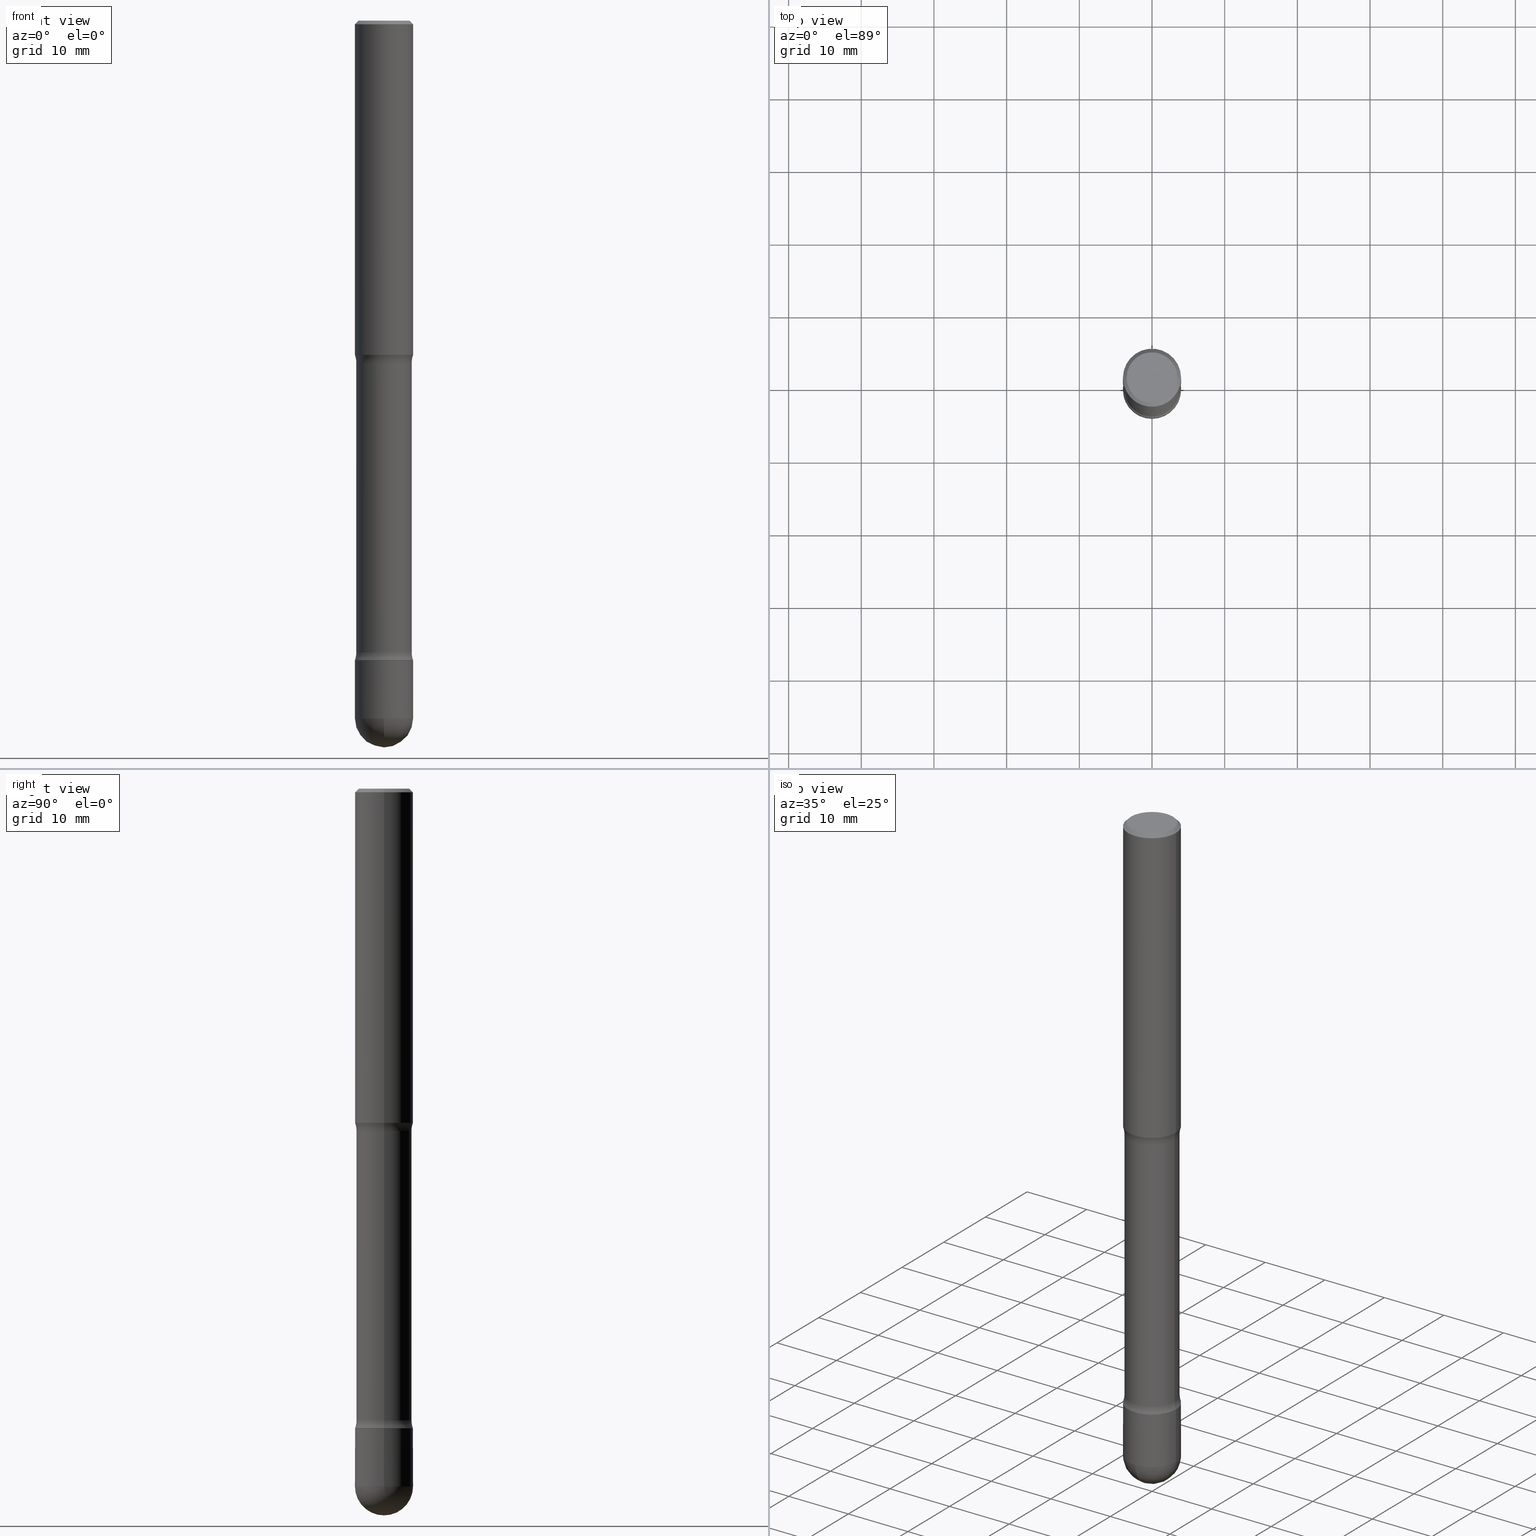
[diagram: canonical four-view strip — front | top / right | iso, engineering-drawing reading convention]
A machine part, canonical four-view strip (front | top / right | iso — engineering-drawing reading convention). The complete STEP part file that produces these views, byte-faithful:
ISO-10303-21;
HEADER;
FILE_DESCRIPTION (( 'STEP AP203' ),
    '1' );
FILE_NAME ('44582.STEP',
    '2024-02-29T19:25:19',
    ( '' ),
    ( '' ),
    'SwSTEP 2.0',
    'SolidWorks 2023',
    '' );
FILE_SCHEMA (( 'CONFIG_CONTROL_DESIGN' ));
ENDSEC;

DATA;
#1 = CYLINDRICAL_SURFACE ( 'NONE', #349, 0.1574999999999998623 ) ;
#2 = CARTESIAN_POINT ( 'NONE',  ( 9.607607386369020124E-29, -1.377489431165532057E-14, -3.937000000000000277 ) ) ;
#3 = FACE_OUTER_BOUND ( 'NONE', #246, .T. ) ;
#4 = AXIS2_PLACEMENT_3D ( 'NONE', #139, #352, #95 ) ;
#5 = AXIS2_PLACEMENT_3D ( 'NONE', #14, #548, #543 ) ;
#6 = ORIENTED_EDGE ( 'NONE', *, *, #463, .T. ) ;
#7 = CYLINDRICAL_SURFACE ( 'NONE', #359, 0.1499999999999998557 ) ;
#8 = CC_DESIGN_PERSON_AND_ORGANIZATION_ASSIGNMENT ( #294, #117, ( #518 ) ) ;
#9 = AXIS2_PLACEMENT_3D ( 'NONE', #450, #317, #486 ) ;
#10 = FACE_OUTER_BOUND ( 'NONE', #222, .T. ) ;
#11 = CARTESIAN_POINT ( 'NONE',  ( 0.000000000000000000, 0.000000000000000000, 0.000000000000000000 ) ) ;
#12 = DIRECTION ( 'NONE',  ( -1.000000000000000000, 6.982962677686264344E-15, 0.000000000000000000 ) ) ;
#13 = AXIS2_PLACEMENT_3D ( 'NONE', #363, #16, #143 ) ;
#14 = CARTESIAN_POINT ( 'NONE',  ( 0.2749999999999869771, -1.383432267117081853E-14, -3.421953194726923275 ) ) ;
#15 = AXIS2_PLACEMENT_3D ( 'NONE', #97, #305, #405 ) ;
#16 = DIRECTION ( 'NONE',  ( 2.445468806185136597E-29, -3.491481338843145583E-15, -1.000000000000000000 ) ) ;
#17 = ADVANCED_FACE ( 'NONE', ( #262 ), #85, .T. ) ;
#18 = DIRECTION ( 'NONE',  ( 2.445468806185136597E-29, -3.491481338843145583E-15, -1.000000000000000000 ) ) ;
#19 = ADVANCED_FACE ( 'NONE', ( #185 ), #313, .T. ) ;
#20 = PERSON_AND_ORGANIZATION ( #40, #114 ) ;
#21 = CARTESIAN_POINT ( 'NONE',  ( 0.1499999999999997446, -1.023890417526618062E-14, -3.421953194726920611 ) ) ;
#22 = VECTOR ( 'NONE', #519, 39.37007874015748143 ) ;
#23 = AXIS2_PLACEMENT_3D ( 'NONE', #302, #87, #79 ) ;
#24 = EDGE_LOOP ( 'NONE', ( #301, #424, #478, #372 ) ) ;
#25 = AXIS2_PLACEMENT_3D ( 'NONE', #541, #101, #59 ) ;
#26 = ORIENTED_EDGE ( 'NONE', *, *, #390, .F. ) ;
#27 = APPLICATION_PROTOCOL_DEFINITION ( 'international standard', 'config_control_design', 1994, #512 ) ;
#28 = ORIENTED_EDGE ( 'NONE', *, *, #144, .F. ) ;
#29 = DIRECTION ( 'NONE',  ( -0.7071067811859887975, 7.493145998868334676E-15, 0.7071067811871062370 ) ) ;
#30 = APPROVAL ( #236, 'UNSPECIFIED' ) ;
#31 = CIRCLE ( 'NONE', #308, 0.1573673271255958406 ) ;
#32 = VERTEX_POINT ( 'NONE', #2 ) ;
#33 = ADVANCED_FACE ( 'NONE', ( #440 ), #214, .T. ) ;
#34 = VERTEX_POINT ( 'NONE', #402 ) ;
#35 = CARTESIAN_POINT ( 'NONE',  ( 0.1569999999999993345, -1.319291138695270268E-14, -3.464599999999999902 ) ) ;
#36 = ORIENTED_EDGE ( 'NONE', *, *, #220, .F. ) ;
#37 = CARTESIAN_POINT ( 'NONE',  ( 9.229180483922148002E-29, -1.321534190724423940E-14, -3.779500000000000082 ) ) ;
#38 = CONICAL_SURFACE ( 'NONE', #380, 0.1569999999999993345, 0.7853981633966581333 ) ;
#39 = APPLICATION_PROTOCOL_DEFINITION ( 'international standard', 'config_control_design', 1994, #540 ) ;
#40 = PERSON ( 'UNSPECIFIED', 'UNSPECIFIED', 'UNSPECIFIED', ('UNSPECIFIED'), ('UNSPECIFIED'), ('UNSPECIFIED') ) ;
#41 = ADVANCED_FACE ( 'NONE', ( #180 ), #341, .T. ) ;
#42 = EDGE_CURVE ( 'NONE', #465, #210, #439, .T. ) ;
#43 = ORIENTED_EDGE ( 'NONE', *, *, #477, .F. ) ;
#44 = DIRECTION ( 'NONE',  ( 2.445468806185136597E-29, -3.491481338843145583E-15, -1.000000000000000000 ) ) ;
#45 = CC_DESIGN_PERSON_AND_ORGANIZATION_ASSIGNMENT ( #232, #413, ( #335 ) ) ;
#46 = EDGE_CURVE ( 'NONE', #504, #34, #418, .T. ) ;
#47 = DIRECTION ( 'NONE',  ( -1.000000000000000000, 6.982962677686264344E-15, 0.000000000000000000 ) ) ;
#48 = DIRECTION ( 'NONE',  ( -2.438088387897960049E-29, 3.491481338843145188E-15, 1.000000000000000000 ) ) ;
#49 = CARTESIAN_POINT ( 'NONE',  ( -0.1574999999999998623, -1.099676962482037704E-14, -3.464599999999999902 ) ) ;
#50 = FACE_OUTER_BOUND ( 'NONE', #140, .T. ) ;
#51 = VERTEX_POINT ( 'NONE', #488 ) ;
#52 = CARTESIAN_POINT ( 'NONE',  ( 0.000000000000000000, 0.000000000000000000, 0.000000000000000000 ) ) ;
#53 = CARTESIAN_POINT ( 'NONE',  ( -0.1569999999999993345, -1.097908788540677166E-14, -3.464599999999999902 ) ) ;
#54 = EDGE_LOOP ( 'NONE', ( #309, #251, #513, #551 ) ) ;
#55 = ORIENTED_EDGE ( 'NONE', *, *, #243, .F. ) ;
#56 = CIRCLE ( 'NONE', #58, 0.1574999999999997513 ) ;
#57 = CARTESIAN_POINT ( 'NONE',  ( 8.471672938881710786E-29, -1.209530373075168983E-14, -3.464232672874402841 ) ) ;
#58 = AXIS2_PLACEMENT_3D ( 'NONE', #280, #419, #429 ) ;
#59 = DIRECTION ( 'NONE',  ( -1.000000000000000000, 6.982962677686265922E-15, -4.876176775795935793E-29 ) ) ;
#60 = APPROVAL_DATE_TIME ( #451, #30 ) ;
#61 = EDGE_CURVE ( 'NONE', #526, #34, #99, .T. ) ;
#62 = CYLINDRICAL_SURFACE ( 'NONE', #146, 0.1574999999999998623 ) ;
#63 = EDGE_CURVE ( 'NONE', #386, #393, #530, .T. ) ;
#64 = PERSON_AND_ORGANIZATION_ROLE ( 'creator' ) ;
#65 = CARTESIAN_POINT ( 'NONE',  ( 9.229180483922148002E-29, -1.321534190724423940E-14, -3.779500000000000082 ) ) ;
#66 = DIRECTION ( 'NONE',  ( 2.445468806185136597E-29, -3.491481338843145583E-15, -1.000000000000000000 ) ) ;
#67 = EDGE_CURVE ( 'NONE', #70, #295, #69, .T. ) ;
#68 = CARTESIAN_POINT ( 'NONE',  ( 4.428744008001288403E-29, -6.323072704644945461E-15, -1.811000000000002608 ) ) ;
#69 = CIRCLE ( 'NONE', #501, 0.1574999999999993072 ) ;
#70 = VERTEX_POINT ( 'NONE', #77 ) ;
#71 = CIRCLE ( 'NONE', #436, 0.1573673271255958406 ) ;
#72 = LOCAL_TIME ( 14, 25, 19.00000000000000000, #381 ) ;
#73 = CONICAL_SURFACE ( 'NONE', #389, 0.1569999999999993345, 0.7853981633966581333 ) ;
#74 = ORIENTED_EDGE ( 'NONE', *, *, #67, .T. ) ;
#75 = ORIENTED_EDGE ( 'NONE', *, *, #542, .F. ) ;
#76 = EDGE_LOOP ( 'NONE', ( #82, #387, #209, #26 ) ) ;
#77 = CARTESIAN_POINT ( 'NONE',  ( -1.099816621735492028E-15, -0.1575000000000128797, -3.779499999999999194 ) ) ;
#78 = EDGE_LOOP ( 'NONE', ( #227, #493 ) ) ;
#79 = DIRECTION ( 'NONE',  ( -1.000000000000000000, 6.982962677686266711E-15, 0.000000000000000000 ) ) ;
#80 = AXIS2_PLACEMENT_3D ( 'NONE', #269, #533, #217 ) ;
#81 = CARTESIAN_POINT ( 'NONE',  ( 0.1499999999999998557, -1.312566094622169094E-14, -3.464599999999999902 ) ) ;
#82 = ORIENTED_EDGE ( 'NONE', *, *, #61, .F. ) ;
#83 = DIRECTION ( 'NONE',  ( -1.000000000000000000, 6.982962677686261977E-15, 0.000000000000000000 ) ) ;
#84 = ADVANCED_FACE ( 'NONE', ( #347 ), #300, .T. ) ;
#85 = PLANE ( 'NONE',  #449 ) ;
#86 = PRODUCT_DEFINITION_SHAPE ( 'NONE', 'NONE',  #422 ) ;
#87 = DIRECTION ( 'NONE',  ( 2.445468806185136597E-29, -3.491481338843145583E-15, -1.000000000000000000 ) ) ;
#88 = DIRECTION ( 'NONE',  ( 2.445468806185136597E-29, -3.491481338843145583E-15, -1.000000000000000000 ) ) ;
#89 = AXIS2_PLACEMENT_3D ( 'NONE', #443, #277, #409 ) ;
#90 = ORIENTED_EDGE ( 'NONE', *, *, #306, .F. ) ;
#91 = LOCAL_TIME ( 14, 25, 19.00000000000000000, #537 ) ;
#92 = DIRECTION ( 'NONE',  ( 2.445468806185136597E-29, -3.491481338843145583E-15, -1.000000000000000000 ) ) ;
#93 = ORIENTED_EDGE ( 'NONE', *, *, #325, .F. ) ;
#94 = DIRECTION ( 'NONE',  ( -1.000000000000000000, 6.982962677686269866E-15, -4.883557194083114583E-29 ) ) ;
#95 = DIRECTION ( 'NONE',  ( -1.000000000000000000, 6.982962677686266711E-15, 0.000000000000000000 ) ) ;
#96 = ORIENTED_EDGE ( 'NONE', *, *, #546, .T. ) ;
#97 = CARTESIAN_POINT ( 'NONE',  ( 9.229180483922148002E-29, -1.321534190724423940E-14, -3.779500000000000082 ) ) ;
#98 = DATE_AND_TIME ( #487, #167 ) ;
#99 = LINE ( 'NONE', #316, #168 ) ;
#100 = AXIS2_PLACEMENT_3D ( 'NONE', #461, #245, #421 ) ;
#101 = DIRECTION ( 'NONE',  ( 2.438088387897960049E-29, -3.491481338843145188E-15, -1.000000000000000000 ) ) ;
#102 = VECTOR ( 'NONE', #358, 39.37007874015748143 ) ;
#103 = CALENDAR_DATE ( 2024, 29, 2 ) ;
#104 = AXIS2_PLACEMENT_3D ( 'NONE', #521, #194, #361 ) ;
#105 = ADVANCED_FACE ( 'NONE', ( #528 ), #434, .T. ) ;
#106 = EDGE_CURVE ( 'NONE', #464, #210, #186, .T. ) ;
#107 = DIRECTION ( 'NONE',  ( -1.000000000000000000, 6.982962677686266711E-15, 0.000000000000000000 ) ) ;
#108 = DESIGN_CONTEXT ( 'detailed design', #512, 'design' ) ;
#109 = APPROVAL_ROLE ( '' ) ;
#110 = DIRECTION ( 'NONE',  ( 1.000000000000000000, -6.982962677686266711E-15, 0.000000000000000000 ) ) ;
#111 = DIRECTION ( 'NONE',  ( -2.445468806185136877E-29, 3.491481338843145188E-15, 1.000000000000000000 ) ) ;
#112 = AXIS2_PLACEMENT_3D ( 'NONE', #460, #162, #278 ) ;
#113 = PERSON_AND_ORGANIZATION ( #40, #114 ) ;
#114 = ORGANIZATION ( 'UNSPECIFIED', 'UNSPECIFIED', '' ) ;
#115 = ORIENTED_EDGE ( 'NONE', *, *, #466, .F. ) ;
#116 = TOROIDAL_SURFACE ( 'NONE', #9, 0.2749999999999869771, 0.1249999999999869132 ) ;
#117 = PERSON_AND_ORGANIZATION_ROLE ( 'classification_officer' ) ;
#118 = ORIENTED_EDGE ( 'NONE', *, *, #527, .T. ) ;
#119 = CIRCLE ( 'NONE', #536, 0.1374999999999997335 ) ;
#120 = CIRCLE ( 'NONE', #470, 0.1574999999999997513 ) ;
#121 = CC_DESIGN_APPROVAL ( #384, ( #335 ) ) ;
#122 = ADVANCED_FACE ( 'NONE', ( #354 ), #472, .F. ) ;
#123 = VERTEX_POINT ( 'NONE', #396 ) ;
#124 = CARTESIAN_POINT ( 'NONE',  ( -0.1569999999999993345, -1.098103415141260940E-14, -3.464599999999999902 ) ) ;
#125 = AXIS2_PLACEMENT_3D ( 'NONE', #535, #417, #94 ) ;
#126 = VERTEX_POINT ( 'NONE', #141 ) ;
#127 = EDGE_CURVE ( 'NONE', #504, #465, #362, .T. ) ;
#128 = ADVANCED_FACE ( 'NONE', ( #257 ), #73, .T. ) ;
#129 = ORIENTED_EDGE ( 'NONE', *, *, #344, .F. ) ;
#130 = DIRECTION ( 'NONE',  ( -1.000000000000000000, 6.982962677686268288E-15, 0.000000000000000000 ) ) ;
#131 = ORIENTED_EDGE ( 'NONE', *, *, #344, .T. ) ;
#132 = CARTESIAN_POINT ( 'NONE',  ( -0.1374999999999997335, 9.601573681818597005E-16, -6.704743066719399103E-30 ) ) ;
#133 = EDGE_LOOP ( 'NONE', ( #36, #224, #142, #426 ) ) ;
#134 = DIRECTION ( 'NONE',  ( -1.000000000000000000, 6.982962677686266711E-15, -4.883557194083112901E-29 ) ) ;
#135 = CARTESIAN_POINT ( 'NONE',  ( 0.1500000000000000222, -7.452324534188433652E-15, -1.853646805273080567 ) ) ;
#136 = EDGE_CURVE ( 'NONE', #465, #504, #163, .T. ) ;
#137 = DIRECTION ( 'NONE',  ( -1.000000000000000000, 6.982962677686265922E-15, -4.876176775795935793E-29 ) ) ;
#138 = FACE_OUTER_BOUND ( 'NONE', #188, .T. ) ;
#139 = CARTESIAN_POINT ( 'NONE',  ( 4.890937612370220610E-31, -6.982962677686216421E-17, -0.01999999999999978531 ) ) ;
#140 = EDGE_LOOP ( 'NONE', ( #473, #425, #213, #343 ) ) ;
#141 = CARTESIAN_POINT ( 'NONE',  ( -0.1573673271255958406, -1.099641355874640782E-14, -3.464232672874402841 ) ) ;
#142 = ORIENTED_EDGE ( 'NONE', *, *, #356, .F. ) ;
#143 = DIRECTION ( 'NONE',  ( -1.000000000000000000, 6.982962677686266711E-15, 0.000000000000000000 ) ) ;
#144 = EDGE_CURVE ( 'NONE', #408, #485, #400, .T. ) ;
#145 = DIRECTION ( 'NONE',  ( 2.445468806185136877E-29, -3.491481338843145188E-15, -1.000000000000000000 ) ) ;
#146 = AXIS2_PLACEMENT_3D ( 'NONE', #534, #368, #532 ) ;
#147 = DIRECTION ( 'NONE',  ( -2.445468806185136597E-29, 3.491481338843145583E-15, 1.000000000000000000 ) ) ;
#148 = CIRCLE ( 'NONE', #13, 0.1499999999999997446 ) ;
#149 = DIRECTION ( 'NONE',  ( -2.445468806185136597E-29, 3.491481338843145583E-15, 1.000000000000000000 ) ) ;
#150 = DATE_TIME_ROLE ( 'creation_date' ) ;
#151 = MECHANICAL_CONTEXT ( 'NONE', #540, 'mechanical' ) ;
#152 = EDGE_CURVE ( 'NONE', #295, #467, #173, .T. ) ;
#153 = ORIENTED_EDGE ( 'NONE', *, *, #297, .T. ) ;
#154 = AXIS2_PLACEMENT_3D ( 'NONE', #403, #92, #468 ) ;
#155 = ADVANCED_FACE ( 'NONE', ( #138 ), #311, .F. ) ;
#156 = PRODUCT_RELATED_PRODUCT_CATEGORY ( 'detail', '', ( #184 ) ) ;
#157 = DIRECTION ( 'NONE',  ( -2.445468806185136597E-29, 3.491481338843145583E-15, 1.000000000000000000 ) ) ;
#158 = EDGE_CURVE ( 'NONE', #482, #467, #170, .T. ) ;
#159 = CARTESIAN_POINT ( 'NONE',  ( -0.1574999999999997513, 1.029986994958723196E-15, -0.01999999999999978531 ) ) ;
#160 = PERSON_AND_ORGANIZATION_ROLE ( 'design_owner' ) ;
#161 = CARTESIAN_POINT ( 'NONE',  ( -0.1500000000000000222, -5.424528827764234902E-15, -1.853646805273080567 ) ) ;
#162 = DIRECTION ( 'NONE',  ( -2.445468806185136597E-29, 3.491481338843145583E-15, 1.000000000000000000 ) ) ;
#163 = CIRCLE ( 'NONE', #154, 0.1500000000000000222 ) ;
#164 = AXIS2_PLACEMENT_3D ( 'NONE', #566, #442, #350 ) ;
#165 = ORIENTED_EDGE ( 'NONE', *, *, #158, .F. ) ;
#166 = EDGE_LOOP ( 'NONE', ( #43, #435, #153, #93 ) ) ;
#167 = LOCAL_TIME ( 14, 25, 19.00000000000000000, #547 ) ;
#168 = VECTOR ( 'NONE', #145, 39.37007874015748143 ) ;
#169 = ORIENTED_EDGE ( 'NONE', *, *, #510, .F. ) ;
#170 = CIRCLE ( 'NONE', #374, 0.1574999999999993350 ) ;
#171 = DIRECTION ( 'NONE',  ( -1.000000000000000000, 6.982962677686264344E-15, 0.000000000000000000 ) ) ;
#172 = ORIENTED_EDGE ( 'NONE', *, *, #152, .F. ) ;
#173 = LINE ( 'NONE', #514, #182 ) ;
#174 = DIRECTION ( 'NONE',  ( 2.445468806185136597E-29, -3.491481338843145583E-15, -1.000000000000000000 ) ) ;
#175 = EDGE_LOOP ( 'NONE', ( #299, #253, #241, #172, #340 ) ) ;
#176 = CC_DESIGN_PERSON_AND_ORGANIZATION_ASSIGNMENT ( #454, #64, ( #335 ) ) ;
#177 = CARTESIAN_POINT ( 'NONE',  ( 0.000000000000000000, 0.000000000000000000, 0.000000000000000000 ) ) ;
#178 = AXIS2_PLACEMENT_3D ( 'NONE', #65, #205, #382 ) ;
#179 = LOCAL_TIME ( 14, 25, 19.00000000000000000, #458 ) ;
#180 = FACE_OUTER_BOUND ( 'NONE', #265, .T. ) ;
#181 = VECTOR ( 'NONE', #254, 39.37007874015748143 ) ;
#182 = VECTOR ( 'NONE', #525, 39.37007874015748143 ) ;
#183 = CARTESIAN_POINT ( 'NONE',  ( 1.119104808822247534E-15, 0.1574999999999864841, -3.779500000000000526 ) ) ;
#184 = PRODUCT ( '44582', '44582', '', ( #151 ) ) ;
#185 = FACE_OUTER_BOUND ( 'NONE', #133, .T. ) ;
#186 = LINE ( 'NONE', #49, #181 ) ;
#187 = DIRECTION ( 'NONE',  ( -1.000000000000000000, 6.982962677686265922E-15, -4.876176775795935793E-29 ) ) ;
#188 = EDGE_LOOP ( 'NONE', ( #286, #357 ) ) ;
#189 = CARTESIAN_POINT ( 'NONE',  ( 0.1574999999999997513, -1.150358061425876711E-15, -0.01999999999999978531 ) ) ;
#190 = ADVANCED_FACE ( 'NONE', ( #496 ), #291, .F. ) ;
#191 = ADVANCED_FACE ( 'NONE', ( #270 ), #116, .F. ) ;
#192 = CIRCLE ( 'NONE', #112, 0.1574999999999993072 ) ;
#193 = LOCAL_TIME ( 14, 25, 19.00000000000000000, #285 ) ;
#194 = DIRECTION ( 'NONE',  ( -6.982962677686266711E-15, -1.000000000000000000, 3.491481338843145583E-15 ) ) ;
#195 = LINE ( 'NONE', #159, #319 ) ;
#196 = CLOSED_SHELL ( 'NONE', ( #128, #190, #288, #122, #505, #41, #494, #231, #565, #515, #191, #242, #17, #33 ) ) ;
#197 = CARTESIAN_POINT ( 'NONE',  ( 0.1574999999999993072, -1.374613660509239965E-14, -3.779500000000000082 ) ) ;
#198 = AXIS2_PLACEMENT_3D ( 'NONE', #202, #225, #274 ) ;
#199 = CARTESIAN_POINT ( 'NONE',  ( 8.472571225909024784E-29, -1.209658624655596216E-14, -3.464599999999999902 ) ) ;
#200 = DIRECTION ( 'NONE',  ( 2.445468806185136597E-29, -3.491481338843145583E-15, -1.000000000000000000 ) ) ;
#201 = VECTOR ( 'NONE', #394, 39.37007874015748143 ) ;
#202 = CARTESIAN_POINT ( 'NONE',  ( 9.229180483922148002E-29, -1.321534190724423940E-14, -3.779500000000000082 ) ) ;
#203 = FACE_OUTER_BOUND ( 'NONE', #175, .T. ) ;
#204 = PERSON_AND_ORGANIZATION_ROLE ( 'creator' ) ;
#205 = DIRECTION ( 'NONE',  ( 1.000000000000000000, -7.105427357601001070E-15, 4.926315508542082329E-29 ) ) ;
#206 = VECTOR ( 'NONE', #111, 39.37007874015748143 ) ;
#207 = APPROVAL_STATUS ( 'not_yet_approved' ) ;
#208 = AXIS2_PLACEMENT_3D ( 'NONE', #296, #431, #441 ) ;
#209 = ORIENTED_EDGE ( 'NONE', *, *, #106, .T. ) ;
#210 = VERTEX_POINT ( 'NONE', #411 ) ;
#211 = ORIENTED_EDGE ( 'NONE', *, *, #220, .T. ) ;
#212 = EDGE_LOOP ( 'NONE', ( #392, #211, #218, #283 ) ) ;
#213 = ORIENTED_EDGE ( 'NONE', *, *, #42, .T. ) ;
#214 = PLANE ( 'NONE',  #271 ) ;
#215 = DIRECTION ( 'NONE',  ( 1.000000000000000000, -6.982962677686265133E-15, 4.883557194083112901E-29 ) ) ;
#216 = CARTESIAN_POINT ( 'NONE',  ( 0.1574999999999993350, -1.319640286829154569E-14, -3.464599999999999902 ) ) ;
#217 = DIRECTION ( 'NONE',  ( -1.000000000000000000, 6.982962677686266711E-15, 0.000000000000000000 ) ) ;
#218 = ORIENTED_EDGE ( 'NONE', *, *, #391, .F. ) ;
#219 = DIRECTION ( 'NONE',  ( 1.000000000000000000, -6.982962677686269866E-15, 0.000000000000000000 ) ) ;
#220 = EDGE_CURVE ( 'NONE', #32, #70, #410, .T. ) ;
#221 =( LENGTH_UNIT ( ) NAMED_UNIT ( * ) SI_UNIT ( $, .METRE. ) );
#222 = EDGE_LOOP ( 'NONE', ( #115, #169, #239, #131 ) ) ;
#223 = DIRECTION ( 'NONE',  ( 2.445468806185136597E-29, -3.491481338843145583E-15, -1.000000000000000000 ) ) ;
#224 = ORIENTED_EDGE ( 'NONE', *, *, #415, .T. ) ;
#225 = DIRECTION ( 'NONE',  ( -1.000000000000000000, 6.982962677686265922E-15, -4.883557194083112340E-29 ) ) ;
#226 = AXIS2_PLACEMENT_3D ( 'NONE', #456, #157, #337 ) ;
#227 = ORIENTED_EDGE ( 'NONE', *, *, #510, .T. ) ;
#228 = CARTESIAN_POINT ( 'NONE',  ( 8.472571225909024784E-29, -1.209658624655596216E-14, -3.464599999999999902 ) ) ;
#229 = SHAPE_DEFINITION_REPRESENTATION ( #86, #549 ) ;
#230 = CARTESIAN_POINT ( 'NONE',  ( 8.472571225909024784E-29, -1.209658624655596216E-14, -3.464599999999999902 ) ) ;
#231 = ADVANCED_FACE ( 'NONE', ( #263 ), #62, .T. ) ;
#232 = PERSON_AND_ORGANIZATION ( #40, #114 ) ;
#233 = DIRECTION ( 'NONE',  ( 1.000000000000000000, -6.982962677686267499E-15, 0.000000000000000000 ) ) ;
#234 = AXIS2_PLACEMENT_3D ( 'NONE', #177, #223, #187 ) ;
#235 = PERSON_AND_ORGANIZATION ( #40, #114 ) ;
#236 = APPROVAL_STATUS ( 'not_yet_approved' ) ;
#237 = EDGE_CURVE ( 'NONE', #467, #482, #238, .T. ) ;
#238 = CIRCLE ( 'NONE', #545, 0.1574999999999993350 ) ;
#239 = ORIENTED_EDGE ( 'NONE', *, *, #144, .T. ) ;
#240 = AXIS2_PLACEMENT_3D ( 'NONE', #375, #329, #233 ) ;
#241 = ORIENTED_EDGE ( 'NONE', *, *, #237, .F. ) ;
#242 = ADVANCED_FACE ( 'NONE', ( #10 ), #38, .T. ) ;
#243 = EDGE_CURVE ( 'NONE', #126, #393, #304, .T. ) ;
#244 = ORIENTED_EDGE ( 'NONE', *, *, #376, .F. ) ;
#245 = DIRECTION ( 'NONE',  ( -2.445468806185136597E-29, 3.491481338843145583E-15, 1.000000000000000000 ) ) ;
#246 = EDGE_LOOP ( 'NONE', ( #511, #557, #90, #553 ) ) ;
#247 = CARTESIAN_POINT ( 'NONE',  ( -0.1499999999999997446, -1.090024132013079034E-14, -3.421953194726920611 ) ) ;
#248 = CIRCLE ( 'NONE', #226, 0.1574999999999993072 ) ;
#249 = CIRCLE ( 'NONE', #268, 0.1569999999999993345 ) ;
#250 = VECTOR ( 'NONE', #29, 39.37007874015748143 ) ;
#251 = ORIENTED_EDGE ( 'NONE', *, *, #546, .F. ) ;
#252 = LINE ( 'NONE', #444, #102 ) ;
#253 = ORIENTED_EDGE ( 'NONE', *, *, #376, .T. ) ;
#254 = DIRECTION ( 'NONE',  ( 2.445468806185136877E-29, -3.491481338843145188E-15, -1.000000000000000000 ) ) ;
#255 =( NAMED_UNIT ( * ) SI_UNIT ( $, .STERADIAN. ) SOLID_ANGLE_UNIT ( ) );
#256 = DIRECTION ( 'NONE',  ( 2.438088387897960049E-29, -3.491481338843145188E-15, -1.000000000000000000 ) ) ;
#257 = FACE_OUTER_BOUND ( 'NONE', #462, .T. ) ;
#258 = CARTESIAN_POINT ( 'NONE',  ( 8.472571225909024784E-29, -1.209658624655596216E-14, -3.464599999999999902 ) ) ;
#259 = CONICAL_SURFACE ( 'NONE', #4, 0.1574999999999997513, 0.7853981633974541632 ) ;
#260 = CARTESIAN_POINT ( 'NONE',  ( 1.096325140396823951E-15, 0.1569999999999872609, -3.464600000000000346 ) ) ;
#261 = CC_DESIGN_PERSON_AND_ORGANIZATION_ASSIGNMENT ( #366, #160, ( #184 ) ) ;
#262 = FACE_OUTER_BOUND ( 'NONE', #78, .T. ) ;
#263 = FACE_OUTER_BOUND ( 'NONE', #76, .T. ) ;
#264 = DIRECTION ( 'NONE',  ( 2.445468806185136597E-29, -3.491481338843145583E-15, -1.000000000000000000 ) ) ;
#265 = EDGE_LOOP ( 'NONE', ( #292, #433, #353, #342 ) ) ;
#266 = CARTESIAN_POINT ( 'NONE',  ( 0.2749999999999883094, -8.358610178804266256E-15, -1.853646805273080567 ) ) ;
#267 = CARTESIAN_POINT ( 'NONE',  ( 4.890937612370220610E-31, -6.982962677686216421E-17, -0.01999999999999978531 ) ) ;
#268 = AXIS2_PLACEMENT_3D ( 'NONE', #258, #264, #558 ) ;
#269 = CARTESIAN_POINT ( 'NONE',  ( 8.368279793930256495E-29, -1.194768572178372876E-14, -3.421953194726920611 ) ) ;
#270 = FACE_OUTER_BOUND ( 'NONE', #54, .T. ) ;
#271 = AXIS2_PLACEMENT_3D ( 'NONE', #395, #48, #560 ) ;
#272 = APPROVAL_ROLE ( '' ) ;
#273 = EDGE_CURVE ( 'NONE', #554, #51, #119, .T. ) ;
#274 = DIRECTION ( 'NONE',  ( -6.982962677686264344E-15, -1.000000000000000000, 0.000000000000000000 ) ) ;
#275 = APPROVAL_DATE_TIME ( #98, #384 ) ;
#276 = CYLINDRICAL_SURFACE ( 'NONE', #100, 0.1574999999999993350 ) ;
#277 = DIRECTION ( 'NONE',  ( -6.982962677686266711E-15, -1.000000000000000000, 3.491481338843145583E-15 ) ) ;
#278 = DIRECTION ( 'NONE',  ( 1.000000000000000000, -6.982962677686267499E-15, 0.000000000000000000 ) ) ;
#279 = AXIS2_PLACEMENT_3D ( 'NONE', #345, #88, #83 ) ;
#280 = CARTESIAN_POINT ( 'NONE',  ( 4.890937612370220610E-31, -6.982962677686216421E-17, -0.01999999999999978531 ) ) ;
#281 = ORIENTED_EDGE ( 'NONE', *, *, #61, .T. ) ;
#282 = CALENDAR_DATE ( 2024, 29, 2 ) ;
#283 = ORIENTED_EDGE ( 'NONE', *, *, #453, .F. ) ;
#284 = APPROVAL_ROLE ( '' ) ;
#285 = COORDINATED_UNIVERSAL_TIME_OFFSET ( 5, 0, .BEHIND. ) ;
#286 = ORIENTED_EDGE ( 'NONE', *, *, #237, .T. ) ;
#287 = CIRCLE ( 'NONE', #506, 0.1569999999999993345 ) ;
#288 = ADVANCED_FACE ( 'NONE', ( #3 ), #7, .T. ) ;
#289 = ORIENTED_EDGE ( 'NONE', *, *, #466, .T. ) ;
#290 = PERSON_AND_ORGANIZATION ( #40, #114 ) ;
#291 = TOROIDAL_SURFACE ( 'NONE', #125, 0.2749999999999869771, 0.1249999999999869132 ) ;
#292 = ORIENTED_EDGE ( 'NONE', *, *, #273, .T. ) ;
#293 = CC_DESIGN_PERSON_AND_ORGANIZATION_ASSIGNMENT ( #235, #204, ( #422 ) ) ;
#294 = PERSON_AND_ORGANIZATION ( #40, #114 ) ;
#295 = VERTEX_POINT ( 'NONE', #197 ) ;
#296 = CARTESIAN_POINT ( 'NONE',  ( 0.000000000000000000, 0.000000000000000000, 0.000000000000000000 ) ) ;
#297 = EDGE_CURVE ( 'NONE', #554, #464, #195, .T. ) ;
#298 = DIRECTION ( 'NONE',  ( 2.445468806185136597E-29, -3.491481338843145583E-15, -1.000000000000000000 ) ) ;
#299 = ORIENTED_EDGE ( 'NONE', *, *, #453, .T. ) ;
#300 = CYLINDRICAL_SURFACE ( 'NONE', #208, 0.1574999999999993350 ) ;
#301 = ORIENTED_EDGE ( 'NONE', *, *, #127, .F. ) ;
#302 = CARTESIAN_POINT ( 'NONE',  ( 4.533035439980052208E-29, -6.471973229417174909E-15, -1.853646805273080567 ) ) ;
#303 = FACE_OUTER_BOUND ( 'NONE', #338, .T. ) ;
#304 = CIRCLE ( 'NONE', #89, 0.1249999999999869132 ) ;
#305 = DIRECTION ( 'NONE',  ( 1.000000000000000000, -6.982962677686265133E-15, 4.883557194083112901E-29 ) ) ;
#306 = EDGE_CURVE ( 'NONE', #393, #386, #148, .T. ) ;
#307 = CARTESIAN_POINT ( 'NONE',  ( 0.1573673271255958406, -1.317492196341149639E-14, -3.464232672874402841 ) ) ;
#308 = AXIS2_PLACEMENT_3D ( 'NONE', #481, #516, #47 ) ;
#309 = ORIENTED_EDGE ( 'NONE', *, *, #463, .F. ) ;
#310 = AXIS2_PLACEMENT_3D ( 'NONE', #266, #445, #367 ) ;
#311 = PLANE ( 'NONE',  #25 ) ;
#312 = ORIENTED_EDGE ( 'NONE', *, *, #106, .F. ) ;
#313 = SPHERICAL_SURFACE ( 'NONE', #15, 0.1575000000000000289 ) ;
#314 = DIRECTION ( 'NONE',  ( 2.445468806185136597E-29, -3.491481338843145583E-15, -1.000000000000000000 ) ) ;
#315 = CC_DESIGN_DATE_AND_TIME_ASSIGNMENT ( #420, #150, ( #422 ) ) ;
#316 = CARTESIAN_POINT ( 'NONE',  ( 0.1574999999999998623, -1.317711468120497794E-14, -3.464599999999999902 ) ) ;
#317 = DIRECTION ( 'NONE',  ( 2.445468806185136597E-29, -3.491481338843145583E-15, -1.000000000000000000 ) ) ;
#318 = EDGE_CURVE ( 'NONE', #550, #408, #287, .T. ) ;
#319 = VECTOR ( 'NONE', #321, 39.37007874015748143 ) ;
#320 = APPROVAL_PERSON_ORGANIZATION ( #290, #480, #284 ) ;
#321 = DIRECTION ( 'NONE',  ( -0.7071067811865516806, 2.468850131082300448E-15, -0.7071067811865433539 ) ) ;
#322 = AXIS2_PLACEMENT_3D ( 'NONE', #561, #44, #134 ) ;
#323 = APPROVAL_STATUS ( 'not_yet_approved' ) ;
#324 = ORIENTED_EDGE ( 'NONE', *, *, #127, .T. ) ;
#325 = EDGE_CURVE ( 'NONE', #526, #464, #120, .T. ) ;
#326 = DIRECTION ( 'NONE',  ( -1.000000000000000000, 6.982962677686261977E-15, 0.000000000000000000 ) ) ;
#327 = CALENDAR_DATE ( 2024, 29, 2 ) ;
#328 = CARTESIAN_POINT ( 'NONE',  ( 9.242649352976724072E-29, -1.319605372015766849E-14, -3.779500000000000082 ) ) ;
#329 = DIRECTION ( 'NONE',  ( -2.445468806185136597E-29, 3.491481338843145583E-15, 1.000000000000000000 ) ) ;
#330 = LINE ( 'NONE', #499, #206 ) ;
#331 = DATE_AND_TIME ( #103, #179 ) ;
#332 = DIRECTION ( 'NONE',  ( 0.000000000000000000, 0.000000000000000000, 1.000000000000000000 ) ) ;
#333 = DATE_TIME_ROLE ( 'classification_date' ) ;
#334 = CIRCLE ( 'NONE', #500, 0.1574999999999999456 ) ;
#335 = PRODUCT_DEFINITION_FORMATION_WITH_SPECIFIED_SOURCE ( 'ANY', '', #184, .NOT_KNOWN. ) ;
#336 = VECTOR ( 'NONE', #555, 39.37007874015748143 ) ;
#337 = DIRECTION ( 'NONE',  ( 1.000000000000000000, -6.982962677686267499E-15, 0.000000000000000000 ) ) ;
#338 = EDGE_LOOP ( 'NONE', ( #346, #281, #539, #312 ) ) ;
#339 = EDGE_CURVE ( 'NONE', #210, #34, #447, .T. ) ;
#340 = ORIENTED_EDGE ( 'NONE', *, *, #356, .T. ) ;
#341 = CONICAL_SURFACE ( 'NONE', #164, 0.1574999999999997513, 0.7853981633974541632 ) ;
#342 = ORIENTED_EDGE ( 'NONE', *, *, #297, .F. ) ;
#343 = ORIENTED_EDGE ( 'NONE', *, *, #339, .T. ) ;
#344 = EDGE_CURVE ( 'NONE', #485, #126, #71, .T. ) ;
#345 = CARTESIAN_POINT ( 'NONE',  ( 8.472571225909024784E-29, -1.209658624655596216E-14, -3.464599999999999902 ) ) ;
#346 = ORIENTED_EDGE ( 'NONE', *, *, #407, .T. ) ;
#347 = FACE_OUTER_BOUND ( 'NONE', #524, .T. ) ;
#348 = LINE ( 'NONE', #81, #22 ) ;
#349 = AXIS2_PLACEMENT_3D ( 'NONE', #404, #174, #130 ) ;
#350 = DIRECTION ( 'NONE',  ( -1.000000000000000000, 6.982962677686266711E-15, 0.000000000000000000 ) ) ;
#351 = DIRECTION ( 'NONE',  ( 1.000000000000000000, -6.982962677686267499E-15, 0.000000000000000000 ) ) ;
#352 = DIRECTION ( 'NONE',  ( 2.445468806185136597E-29, -3.491481338843145583E-15, -1.000000000000000000 ) ) ;
#353 = ORIENTED_EDGE ( 'NONE', *, *, #407, .F. ) ;
#354 = FACE_OUTER_BOUND ( 'NONE', #24, .T. ) ;
#355 =( CONVERSION_BASED_UNIT ( 'INCH', #564 ) LENGTH_UNIT ( ) NAMED_UNIT ( #476 ) );
#356 = EDGE_CURVE ( 'NONE', #295, #474, #192, .T. ) ;
#357 = ORIENTED_EDGE ( 'NONE', *, *, #158, .T. ) ;
#358 = DIRECTION ( 'NONE',  ( 2.445468806185136877E-29, -3.491481338843145188E-15, -1.000000000000000000 ) ) ;
#359 = AXIS2_PLACEMENT_3D ( 'NONE', #199, #66, #326 ) ;
#360 = CC_DESIGN_APPROVAL ( #480, ( #422 ) ) ;
#361 = DIRECTION ( 'NONE',  ( 1.000000000000000000, -6.982962677686263555E-15, 0.000000000000000000 ) ) ;
#362 = CIRCLE ( 'NONE', #23, 0.1500000000000000222 ) ;
#363 = CARTESIAN_POINT ( 'NONE',  ( 8.368279793930256495E-29, -1.194768572178372876E-14, -3.421953194726920611 ) ) ;
#364 = CC_DESIGN_DATE_AND_TIME_ASSIGNMENT ( #378, #333, ( #518 ) ) ;
#365 = MANIFOLD_SOLID_BREP ( 'Body-Move/Copy2[2]', #196 ) ;
#366 = PERSON_AND_ORGANIZATION ( #40, #114 ) ;
#367 = DIRECTION ( 'NONE',  ( -1.000000000000000000, 6.860497997771535507E-15, 0.000000000000000000 ) ) ;
#368 = DIRECTION ( 'NONE',  ( 2.445468806185136597E-29, -3.491481338843145583E-15, -1.000000000000000000 ) ) ;
#369 = MANIFOLD_SOLID_BREP ( 'Body-Move/Copy2[1]', #385 ) ;
#370 = DIRECTION ( 'NONE',  ( -2.445468806185136597E-29, 3.491481338843145583E-15, 1.000000000000000000 ) ) ;
#371 = APPROVAL_DATE_TIME ( #331, #480 ) ;
#372 = ORIENTED_EDGE ( 'NONE', *, *, #42, .F. ) ;
#373 = DIRECTION ( 'NONE',  ( -1.000000000000000000, 6.982962677686264344E-15, 0.000000000000000000 ) ) ;
#374 = AXIS2_PLACEMENT_3D ( 'NONE', #483, #370, #110 ) ;
#375 = CARTESIAN_POINT ( 'NONE',  ( 9.242649352976724072E-29, -1.319605372015766849E-14, -3.779500000000000082 ) ) ;
#376 = EDGE_CURVE ( 'NONE', #123, #482, #330, .T. ) ;
#377 = DIRECTION ( 'NONE',  ( 2.445468806185136597E-29, -3.491481338843145583E-15, -1.000000000000000000 ) ) ;
#378 = DATE_AND_TIME ( #327, #193 ) ;
#379 = CALENDAR_DATE ( 2024, 29, 2 ) ;
#380 = AXIS2_PLACEMENT_3D ( 'NONE', #230, #147, #489 ) ;
#381 = COORDINATED_UNIVERSAL_TIME_OFFSET ( 5, 0, .BEHIND. ) ;
#382 = DIRECTION ( 'NONE',  ( 7.105427357601000281E-15, 1.000000000000000000, 0.000000000000000000 ) ) ;
#383 = AXIS2_PLACEMENT_3D ( 'NONE', #452, #412, #12 ) ;
#384 = APPROVAL ( #323, 'UNSPECIFIED' ) ;
#385 = CLOSED_SHELL ( 'NONE', ( #414, #19, #105, #84, #155 ) ) ;
#386 = VERTEX_POINT ( 'NONE', #21 ) ;
#387 = ORIENTED_EDGE ( 'NONE', *, *, #325, .T. ) ;
#388 = ORIENTED_EDGE ( 'NONE', *, *, #63, .T. ) ;
#389 = AXIS2_PLACEMENT_3D ( 'NONE', #471, #479, #219 ) ;
#390 = EDGE_CURVE ( 'NONE', #34, #210, #334, .T. ) ;
#391 = EDGE_CURVE ( 'NONE', #123, #70, #248, .T. ) ;
#392 = ORIENTED_EDGE ( 'NONE', *, *, #415, .F. ) ;
#393 = VERTEX_POINT ( 'NONE', #247 ) ;
#394 = DIRECTION ( 'NONE',  ( 0.7071067811865516806, -7.319954787623270245E-15, -0.7071067811865433539 ) ) ;
#395 = CARTESIAN_POINT ( 'NONE',  ( 9.601573681818597005E-16, 0.1374999999999997335, -4.779444278458813133E-16 ) ) ;
#396 = CARTESIAN_POINT ( 'NONE',  ( -0.1574999999999993072, -1.152721517453466482E-14, -3.779500000000000082 ) ) ;
#397 = CIRCLE ( 'NONE', #240, 0.1574999999999993072 ) ;
#398 = FACE_OUTER_BOUND ( 'NONE', #166, .T. ) ;
#399 = ORIENTED_EDGE ( 'NONE', *, *, #318, .F. ) ;
#400 = LINE ( 'NONE', #35, #336 ) ;
#401 = DIRECTION ( 'NONE',  ( -1.000000000000000000, 6.982962677686266711E-15, -4.883557194083112901E-29 ) ) ;
#402 = CARTESIAN_POINT ( 'NONE',  ( 0.1574999999999999456, -4.276979600359918976E-15, -1.811000000000002608 ) ) ;
#403 = CARTESIAN_POINT ( 'NONE',  ( 4.533035439980052208E-29, -6.471973229417174909E-15, -1.853646805273080567 ) ) ;
#404 = CARTESIAN_POINT ( 'NONE',  ( 8.472571225909024784E-29, -1.209658624655596216E-14, -3.464599999999999902 ) ) ;
#405 = DIRECTION ( 'NONE',  ( -6.982962677686265133E-15, -1.000000000000000000, 3.469013325287952504E-15 ) ) ;
#406 = DIRECTION ( 'NONE',  ( -1.000000000000000000, 6.982962677686265922E-15, -4.876176775795935793E-29 ) ) ;
#407 = EDGE_CURVE ( 'NONE', #464, #526, #56, .T. ) ;
#408 = VERTEX_POINT ( 'NONE', #495 ) ;
#409 = DIRECTION ( 'NONE',  ( 1.000000000000000000, -6.982962677686264344E-15, 0.000000000000000000 ) ) ;
#410 = CIRCLE ( 'NONE', #198, 0.1575000000000000289 ) ;
#411 = CARTESIAN_POINT ( 'NONE',  ( -0.1574999999999999456, -5.223256082909359559E-15, -1.811000000000002608 ) ) ;
#412 = DIRECTION ( 'NONE',  ( 2.445468806185136597E-29, -3.491481338843145583E-15, -1.000000000000000000 ) ) ;
#413 = PERSON_AND_ORGANIZATION_ROLE ( 'design_supplier' ) ;
#414 = ADVANCED_FACE ( 'NONE', ( #203 ), #276, .T. ) ;
#415 = EDGE_CURVE ( 'NONE', #32, #474, #423, .T. ) ;
#416 = CC_DESIGN_APPROVAL ( #30, ( #518 ) ) ;
#417 = DIRECTION ( 'NONE',  ( 2.445468806185136597E-29, -3.491481338843145583E-15, -1.000000000000000000 ) ) ;
#418 = CIRCLE ( 'NONE', #310, 0.1249999999999883010 ) ;
#419 = DIRECTION ( 'NONE',  ( 2.445468806185136597E-29, -3.491481338843145583E-15, -1.000000000000000000 ) ) ;
#420 = DATE_AND_TIME ( #379, #91 ) ;
#421 = DIRECTION ( 'NONE',  ( 1.000000000000000000, -6.982962677686266711E-15, 4.876176775795936353E-29 ) ) ;
#422 = PRODUCT_DEFINITION ( 'UNKNOWN', '', #335, #108 ) ;
#423 = CIRCLE ( 'NONE', #178, 0.1575000000000000289 ) ;
#424 = ORIENTED_EDGE ( 'NONE', *, *, #46, .T. ) ;
#425 = ORIENTED_EDGE ( 'NONE', *, *, #136, .F. ) ;
#426 = ORIENTED_EDGE ( 'NONE', *, *, #67, .F. ) ;
#427 = ORIENTED_EDGE ( 'NONE', *, *, #152, .T. ) ;
#428 = CC_DESIGN_SECURITY_CLASSIFICATION ( #518, ( #335 ) ) ;
#429 = DIRECTION ( 'NONE',  ( -1.000000000000000000, 6.982962677686266711E-15, 0.000000000000000000 ) ) ;
#430 = ORIENTED_EDGE ( 'NONE', *, *, #273, .F. ) ;
#431 = DIRECTION ( 'NONE',  ( -2.445468806185136597E-29, 3.491481338843145583E-15, 1.000000000000000000 ) ) ;
#432 =( NAMED_UNIT ( * ) PLANE_ANGLE_UNIT ( ) SI_UNIT ( $, .RADIAN. ) );
#433 = ORIENTED_EDGE ( 'NONE', *, *, #477, .T. ) ;
#434 = SPHERICAL_SURFACE ( 'NONE', #520, 0.1575000000000000289 ) ;
#435 = ORIENTED_EDGE ( 'NONE', *, *, #490, .T. ) ;
#436 = AXIS2_PLACEMENT_3D ( 'NONE', #57, #200, #373 ) ;
#437 = FACE_OUTER_BOUND ( 'NONE', #517, .T. ) ;
#438 = AXIS2_PLACEMENT_3D ( 'NONE', #11, #332, #538 ) ;
#439 = CIRCLE ( 'NONE', #104, 0.1249999999999883010 ) ;
#440 = FACE_OUTER_BOUND ( 'NONE', #484, .T. ) ;
#441 = DIRECTION ( 'NONE',  ( 1.000000000000000000, -6.982962677686266711E-15, 4.876176775795936353E-29 ) ) ;
#442 = DIRECTION ( 'NONE',  ( 2.445468806185136597E-29, -3.491481338843145583E-15, -1.000000000000000000 ) ) ;
#443 = CARTESIAN_POINT ( 'NONE',  ( -0.2749999999999869771, -1.002737098542010482E-14, -3.421953194726923275 ) ) ;
#444 = CARTESIAN_POINT ( 'NONE',  ( -0.1499999999999998557, -1.104914184490302373E-14, -3.464599999999999902 ) ) ;
#445 = DIRECTION ( 'NONE',  ( 6.860497997771531562E-15, 1.000000000000000000, -3.491481338843145583E-15 ) ) ;
#446 = DIRECTION ( 'NONE',  ( 2.445468806185136597E-29, -3.491481338843145583E-15, -1.000000000000000000 ) ) ;
#447 = CIRCLE ( 'NONE', #383, 0.1574999999999999456 ) ;
#448 = AXIS2_PLACEMENT_3D ( 'NONE', #562, #298, #401 ) ;
#449 = AXIS2_PLACEMENT_3D ( 'NONE', #260, #256, #137 ) ;
#450 = CARTESIAN_POINT ( 'NONE',  ( 8.368279793930263222E-29, -1.194768572178373665E-14, -3.421953194726923275 ) ) ;
#451 = DATE_AND_TIME ( #282, #72 ) ;
#452 = CARTESIAN_POINT ( 'NONE',  ( 4.428744008001288403E-29, -6.323072704644945461E-15, -1.811000000000002608 ) ) ;
#453 = EDGE_CURVE ( 'NONE', #474, #123, #397, .T. ) ;
#454 = PERSON_AND_ORGANIZATION ( #40, #114 ) ;
#455 = SECURITY_CLASSIFICATION_LEVEL ( 'unclassified' ) ;
#456 = CARTESIAN_POINT ( 'NONE',  ( 9.242649352976724072E-29, -1.319605372015766849E-14, -3.779500000000000082 ) ) ;
#457 = DIRECTION ( 'NONE',  ( 1.000000000000000000, -6.982962677686266711E-15, 0.000000000000000000 ) ) ;
#458 = COORDINATED_UNIVERSAL_TIME_OFFSET ( 5, 0, .BEHIND. ) ;
#459 = TOROIDAL_SURFACE ( 'NONE', #448, 0.2749999999999883094, 0.1249999999999883010 ) ;
#460 = CARTESIAN_POINT ( 'NONE',  ( 9.242649352976724072E-29, -1.319605372015766849E-14, -3.779500000000000082 ) ) ;
#461 = CARTESIAN_POINT ( 'NONE',  ( 0.000000000000000000, 0.000000000000000000, 0.000000000000000000 ) ) ;
#462 = EDGE_LOOP ( 'NONE', ( #399, #289, #96, #28 ) ) ;
#463 = EDGE_CURVE ( 'NONE', #485, #386, #559, .T. ) ;
#464 = VERTEX_POINT ( 'NONE', #503 ) ;
#465 = VERTEX_POINT ( 'NONE', #161 ) ;
#466 = EDGE_CURVE ( 'NONE', #550, #126, #498, .T. ) ;
#467 = VERTEX_POINT ( 'NONE', #216 ) ;
#468 = DIRECTION ( 'NONE',  ( -1.000000000000000000, 6.982962677686266711E-15, 0.000000000000000000 ) ) ;
#469 = EDGE_LOOP ( 'NONE', ( #129, #6, #388, #55 ) ) ;
#470 = AXIS2_PLACEMENT_3D ( 'NONE', #267, #446, #107 ) ;
#471 = CARTESIAN_POINT ( 'NONE',  ( 8.472571225909024784E-29, -1.209658624655596216E-14, -3.464599999999999902 ) ) ;
#472 = TOROIDAL_SURFACE ( 'NONE', #322, 0.2749999999999883094, 0.1249999999999883010 ) ;
#473 = ORIENTED_EDGE ( 'NONE', *, *, #46, .F. ) ;
#474 = VERTEX_POINT ( 'NONE', #183 ) ;
#475 = CYLINDRICAL_SURFACE ( 'NONE', #279, 0.1499999999999998557 ) ;
#476 = DIMENSIONAL_EXPONENTS ( 1.000000000000000000, 0.000000000000000000, 0.000000000000000000, 0.000000000000000000, 0.000000000000000000, 0.000000000000000000, 0.000000000000000000 ) ;
#477 = EDGE_CURVE ( 'NONE', #51, #526, #556, .T. ) ;
#478 = ORIENTED_EDGE ( 'NONE', *, *, #390, .T. ) ;
#479 = DIRECTION ( 'NONE',  ( -2.445468806185136597E-29, 3.491481338843145583E-15, 1.000000000000000000 ) ) ;
#480 = APPROVAL ( #207, 'UNSPECIFIED' ) ;
#481 = CARTESIAN_POINT ( 'NONE',  ( 8.471672938881710786E-29, -1.209530373075168983E-14, -3.464232672874402841 ) ) ;
#482 = VERTEX_POINT ( 'NONE', #529 ) ;
#483 = CARTESIAN_POINT ( 'NONE',  ( 8.472571225909024784E-29, -1.209658624655596216E-14, -3.464599999999999902 ) ) ;
#484 = EDGE_LOOP ( 'NONE', ( #430, #508 ) ) ;
#485 = VERTEX_POINT ( 'NONE', #307 ) ;
#486 = DIRECTION ( 'NONE',  ( -1.000000000000000000, 6.982962677686269866E-15, -4.883557194083114583E-29 ) ) ;
#487 = CALENDAR_DATE ( 2024, 29, 2 ) ;
#488 = CARTESIAN_POINT ( 'NONE',  ( 0.1374999999999997335, -1.046838268059730322E-15, 7.017535886221982554E-30 ) ) ;
#489 = DIRECTION ( 'NONE',  ( 1.000000000000000000, -6.982962677686269866E-15, 0.000000000000000000 ) ) ;
#490 = EDGE_CURVE ( 'NONE', #51, #554, #509, .T. ) ;
#491 =( GEOMETRIC_REPRESENTATION_CONTEXT ( 3 ) GLOBAL_UNCERTAINTY_ASSIGNED_CONTEXT ( ( #502 ) ) GLOBAL_UNIT_ASSIGNED_CONTEXT ( ( #355, #432, #255 ) ) REPRESENTATION_CONTEXT ( 'NONE', 'WORKASPACE' ) );
#492 = DIRECTION ( 'NONE',  ( -1.000000000000000000, 6.982962677686269866E-15, 0.000000000000000000 ) ) ;
#493 = ORIENTED_EDGE ( 'NONE', *, *, #318, .T. ) ;
#494 = ADVANCED_FACE ( 'NONE', ( #398 ), #259, .T. ) ;
#495 = CARTESIAN_POINT ( 'NONE',  ( 0.1569999999999993345, -1.319355264485483727E-14, -3.464599999999999902 ) ) ;
#496 = FACE_OUTER_BOUND ( 'NONE', #469, .T. ) ;
#497 = DIRECTION ( 'NONE',  ( -2.445468806185136597E-29, 3.491481338843145583E-15, 1.000000000000000000 ) ) ;
#498 = LINE ( 'NONE', #124, #250 ) ;
#499 = CARTESIAN_POINT ( 'NONE',  ( -0.1574999999999993350, 1.119104808822153067E-15, -7.747322767151444755E-30 ) ) ;
#500 = AXIS2_PLACEMENT_3D ( 'NONE', #68, #18, #171 ) ;
#501 = AXIS2_PLACEMENT_3D ( 'NONE', #328, #497, #351 ) ;
#502 = UNCERTAINTY_MEASURE_WITH_UNIT (LENGTH_MEASURE( 1.000000000000000082E-05 ), #355, 'distance_accuracy_value', 'NONE');
#503 = CARTESIAN_POINT ( 'NONE',  ( -0.1574999999999997513, 1.029986994958723196E-15, -0.01999999999999978531 ) ) ;
#504 = VERTEX_POINT ( 'NONE', #135 ) ;
#505 = ADVANCED_FACE ( 'NONE', ( #303 ), #1, .T. ) ;
#506 = AXIS2_PLACEMENT_3D ( 'NONE', #544, #314, #492 ) ;
#507 = APPROVAL_PERSON_ORGANIZATION ( #20, #384, #109 ) ;
#508 = ORIENTED_EDGE ( 'NONE', *, *, #490, .F. ) ;
#509 = CIRCLE ( 'NONE', #234, 0.1374999999999997335 ) ;
#510 = EDGE_CURVE ( 'NONE', #408, #550, #249, .T. ) ;
#511 = ORIENTED_EDGE ( 'NONE', *, *, #136, .T. ) ;
#512 = APPLICATION_CONTEXT ( 'configuration controlled 3d designs of mechanical parts and assemblies' ) ;
#513 = ORIENTED_EDGE ( 'NONE', *, *, #243, .T. ) ;
#514 = CARTESIAN_POINT ( 'NONE',  ( 0.1574999999999993350, -1.099816621735582353E-15, 7.679978421878567204E-30 ) ) ;
#515 = ADVANCED_FACE ( 'NONE', ( #437 ), #475, .T. ) ;
#516 = DIRECTION ( 'NONE',  ( 2.445468806185136597E-29, -3.491481338843145583E-15, -1.000000000000000000 ) ) ;
#517 = EDGE_LOOP ( 'NONE', ( #75, #324, #118, #531 ) ) ;
#518 = SECURITY_CLASSIFICATION ( '', '', #455 ) ;
#519 = DIRECTION ( 'NONE',  ( 2.445468806185136877E-29, -3.491481338843145188E-15, -1.000000000000000000 ) ) ;
#520 = AXIS2_PLACEMENT_3D ( 'NONE', #37, #215, #522 ) ;
#521 = CARTESIAN_POINT ( 'NONE',  ( -0.2749999999999883094, -4.551658493053533605E-15, -1.853646805273080567 ) ) ;
#522 = DIRECTION ( 'NONE',  ( -6.982962677686265133E-15, -1.000000000000000000, 3.469013325287952504E-15 ) ) ;
#523 = CARTESIAN_POINT ( 'NONE',  ( 0.1574999999999997513, -1.150358061425876711E-15, -0.01999999999999978531 ) ) ;
#524 = EDGE_LOOP ( 'NONE', ( #244, #563, #74, #427, #165 ) ) ;
#525 = DIRECTION ( 'NONE',  ( -2.445468806185136877E-29, 3.491481338843145188E-15, 1.000000000000000000 ) ) ;
#526 = VERTEX_POINT ( 'NONE', #189 ) ;
#527 = EDGE_CURVE ( 'NONE', #465, #393, #252, .T. ) ;
#528 = FACE_OUTER_BOUND ( 'NONE', #212, .T. ) ;
#529 = CARTESIAN_POINT ( 'NONE',  ( -0.1574999999999993350, -1.152721517453466324E-14, -3.464599999999999902 ) ) ;
#530 = CIRCLE ( 'NONE', #80, 0.1499999999999997446 ) ;
#531 = ORIENTED_EDGE ( 'NONE', *, *, #63, .F. ) ;
#532 = DIRECTION ( 'NONE',  ( -1.000000000000000000, 6.982962677686268288E-15, 0.000000000000000000 ) ) ;
#533 = DIRECTION ( 'NONE',  ( 2.445468806185136597E-29, -3.491481338843145583E-15, -1.000000000000000000 ) ) ;
#534 = CARTESIAN_POINT ( 'NONE',  ( 8.472571225909024784E-29, -1.209658624655596216E-14, -3.464599999999999902 ) ) ;
#535 = CARTESIAN_POINT ( 'NONE',  ( 8.368279793930263222E-29, -1.194768572178373665E-14, -3.421953194726923275 ) ) ;
#536 = AXIS2_PLACEMENT_3D ( 'NONE', #52, #377, #406 ) ;
#537 = COORDINATED_UNIVERSAL_TIME_OFFSET ( 5, 0, .BEHIND. ) ;
#538 = DIRECTION ( 'NONE',  ( 1.000000000000000000, 0.000000000000000000, 0.000000000000000000 ) ) ;
#539 = ORIENTED_EDGE ( 'NONE', *, *, #339, .F. ) ;
#540 = APPLICATION_CONTEXT ( 'configuration controlled 3d designs of mechanical parts and assemblies' ) ;
#541 = CARTESIAN_POINT ( 'NONE',  ( 8.472571225909024784E-29, -1.209658624655596216E-14, -3.464599999999999902 ) ) ;
#542 = EDGE_CURVE ( 'NONE', #504, #386, #348, .T. ) ;
#543 = DIRECTION ( 'NONE',  ( -1.000000000000000000, 6.860497997771533140E-15, 0.000000000000000000 ) ) ;
#544 = CARTESIAN_POINT ( 'NONE',  ( 8.472571225909024784E-29, -1.209658624655596216E-14, -3.464599999999999902 ) ) ;
#545 = AXIS2_PLACEMENT_3D ( 'NONE', #228, #149, #457 ) ;
#546 = EDGE_CURVE ( 'NONE', #126, #485, #31, .T. ) ;
#547 = COORDINATED_UNIVERSAL_TIME_OFFSET ( 5, 0, .BEHIND. ) ;
#548 = DIRECTION ( 'NONE',  ( 6.860497997771531562E-15, 1.000000000000000000, -3.491481338843145583E-15 ) ) ;
#549 = ADVANCED_BREP_SHAPE_REPRESENTATION ( '44582', ( #369, #365, #438 ), #491 ) ;
#550 = VERTEX_POINT ( 'NONE', #53 ) ;
#551 = ORIENTED_EDGE ( 'NONE', *, *, #306, .T. ) ;
#552 = APPROVAL_PERSON_ORGANIZATION ( #113, #30, #272 ) ;
#553 = ORIENTED_EDGE ( 'NONE', *, *, #527, .F. ) ;
#554 = VERTEX_POINT ( 'NONE', #132 ) ;
#555 = DIRECTION ( 'NONE',  ( 0.7071067811859887975, -2.468850131076404896E-15, 0.7071067811871062370 ) ) ;
#556 = LINE ( 'NONE', #523, #201 ) ;
#557 = ORIENTED_EDGE ( 'NONE', *, *, #542, .T. ) ;
#558 = DIRECTION ( 'NONE',  ( -1.000000000000000000, 6.982962677686269866E-15, 0.000000000000000000 ) ) ;
#559 = CIRCLE ( 'NONE', #5, 0.1249999999999869132 ) ;
#560 = DIRECTION ( 'NONE',  ( 1.000000000000000000, -6.982962677686265922E-15, 4.876176775795935793E-29 ) ) ;
#561 = CARTESIAN_POINT ( 'NONE',  ( 4.533035439980052208E-29, -6.471973229417174909E-15, -1.853646805273080567 ) ) ;
#562 = CARTESIAN_POINT ( 'NONE',  ( 4.533035439980052208E-29, -6.471973229417174909E-15, -1.853646805273080567 ) ) ;
#563 = ORIENTED_EDGE ( 'NONE', *, *, #391, .T. ) ;
#564 = LENGTH_MEASURE_WITH_UNIT ( LENGTH_MEASURE( 0.02539999999999999897 ), #221 );
#565 = ADVANCED_FACE ( 'NONE', ( #50 ), #459, .F. ) ;
#566 = CARTESIAN_POINT ( 'NONE',  ( 4.890937612370220610E-31, -6.982962677686216421E-17, -0.01999999999999978531 ) ) ;
ENDSEC;
END-ISO-10303-21;
